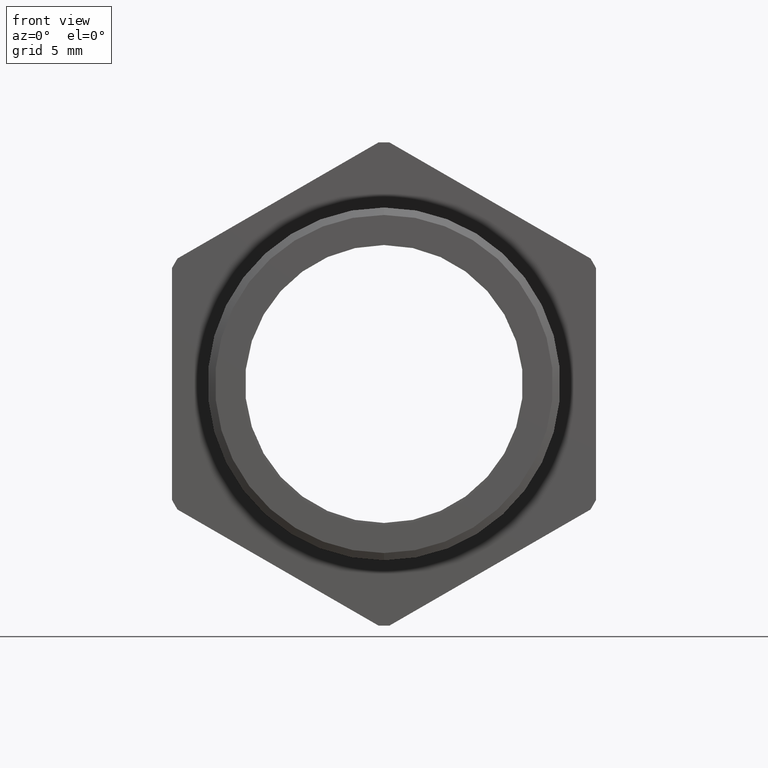
[diagram: clean part render]
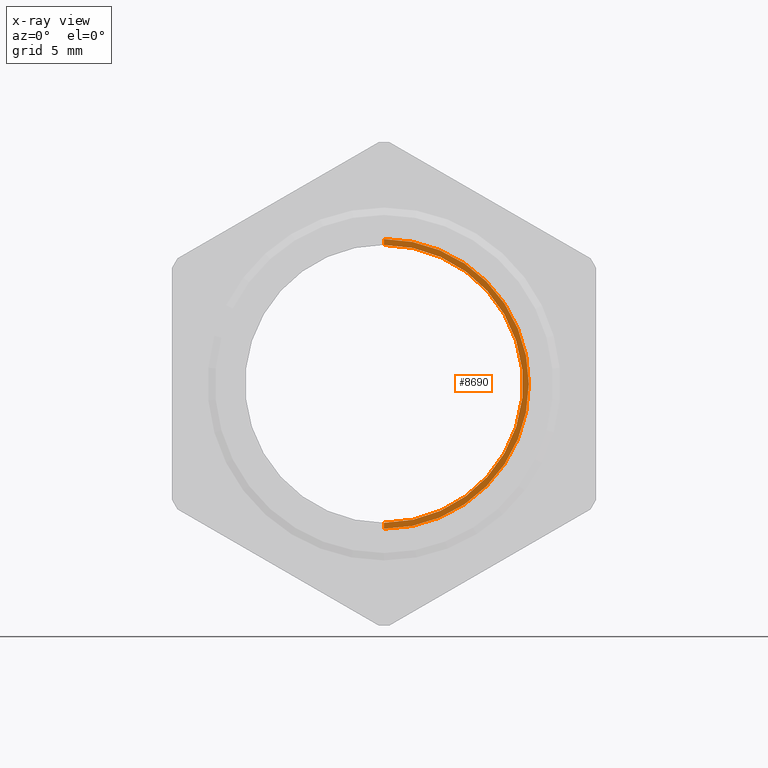
[diagram: x-ray — body ghosted, one internal face saturated and labeled with its STEP entity id]
A machine part, front view, then the same camera in x-ray: the body is ghosted and one INTERNAL B-rep face — a face not visible from any outside direction — is saturated and labeled: STEP entity #8690.
In plain terms, the highlighted conical surface has half-angle 88.312 deg.
Its self-contained STEP definition (entity closure, byte-faithful):
#1401 = VERTEX_POINT ( 'NONE', #4792 ) ;
#1408 = VERTEX_POINT ( 'NONE', #4776 ) ;
#1409 = VERTEX_POINT ( 'NONE', #4775 ) ;
#1411 = EDGE_CURVE ( 'NONE', #1409, #1401, #4774, .T. ) ;
#1414 = EDGE_CURVE ( 'NONE', #1408, #1428, #4769, .T. ) ;
#1428 = VERTEX_POINT ( 'NONE', #4890 ) ;
#4766 = DIRECTION ( 'NONE',  ( 0.0000000000000000000, -0.02945739864719126200, -0.9995660366703845700 ) ) ;
#4767 = VECTOR ( 'NONE', #4766, 39.37007874015747400 ) ;
#4768 = CARTESIAN_POINT ( 'NONE',  ( 0.0000000000000000000, 0.3747992980933291300, -0.2393976470508425700 ) ) ;
#4769 = LINE ( 'NONE', #4768, #4767 ) ;
#4771 = DIRECTION ( 'NONE',  ( 1.224115347344792500E-016, -0.02945739864719126200, 0.9995660366703845700 ) ) ;
#4772 = VECTOR ( 'NONE', #4771, 39.37007874015747400 ) ;
#4773 = CARTESIAN_POINT ( 'NONE',  ( 2.931775621842221100E-017, 0.3747992980933291300, 0.2393976470508425700 ) ) ;
#4774 = LINE ( 'NONE', #4773, #4772 ) ;
#4775 = CARTESIAN_POINT ( 'NONE',  ( 3.171688816986526800E-017, 0.3742219653570459900, 0.2589880461203001900 ) ) ;
#4776 = CARTESIAN_POINT ( 'NONE',  ( 0.0000000000000000000, 0.3742219653570459900, -0.2589880461203001900 ) ) ;
#4792 = CARTESIAN_POINT ( 'NONE',  ( 3.305482958008340700E-017, 0.3738999999999996800, 0.2699131668257122600 ) ) ;
#4890 = CARTESIAN_POINT ( 'NONE',  ( 0.0000000000000000000, 0.3738999999999996800, -0.2699131668257122600 ) ) ;
#7211 = DIRECTION ( 'NONE',  ( 0.0000000000000000000, 0.0000000000000000000, -1.000000000000000000 ) ) ;
#7212 = DIRECTION ( 'NONE',  ( 0.0000000000000000000, -1.000000000000000000, 0.0000000000000000000 ) ) ;
#7213 = CARTESIAN_POINT ( 'NONE',  ( 0.0000000000000000000, 0.3747992980933291300, 0.0000000000000000000 ) ) ;
#7214 = AXIS2_PLACEMENT_3D ( 'NONE', #7213, #7212, #7211 ) ;
#7215 = CONICAL_SURFACE ( 'NONE', #7214, 0.2393976470508425700, 1.541334666264296200 ) ;
#7216 = FACE_OUTER_BOUND ( 'NONE', #8701, .T. ) ;
#7222 = DIRECTION ( 'NONE',  ( 0.0000000000000000000, 0.0000000000000000000, 1.000000000000000000 ) ) ;
#7223 = DIRECTION ( 'NONE',  ( -0.0000000000000000000, 1.000000000000000000, -0.0000000000000000000 ) ) ;
#7224 = CARTESIAN_POINT ( 'NONE',  ( 0.0000000000000000000, 0.3738999999999996800, 0.0000000000000000000 ) ) ;
#7225 = AXIS2_PLACEMENT_3D ( 'NONE', #7224, #7223, #7222 ) ;
#7226 = CIRCLE ( 'NONE', #7225, 0.2699131668257122000 ) ;
#8053 = DIRECTION ( 'NONE',  ( 0.0000000000000000000, 0.0000000000000000000, -1.000000000000000000 ) ) ;
#8054 = DIRECTION ( 'NONE',  ( -0.0000000000000000000, 1.000000000000000000, -0.0000000000000000000 ) ) ;
#8055 = CARTESIAN_POINT ( 'NONE',  ( 0.0000000000000000000, 0.3742219653570459900, 0.0000000000000000000 ) ) ;
#8056 = AXIS2_PLACEMENT_3D ( 'NONE', #8055, #8054, #8053 ) ;
#8061 = CIRCLE ( 'NONE', #8056, 0.2589880461203001900 ) ;
#8688 = ORIENTED_EDGE ( 'NONE', *, *, #1414, .T. ) ;
#8690 = ADVANCED_FACE ( 'NONE', ( #7216 ), #7215, .F. ) ;
#8694 = ORIENTED_EDGE ( 'NONE', *, *, #9212, .T. ) ;
#8698 = ORIENTED_EDGE ( 'NONE', *, *, #1411, .F. ) ;
#8701 = EDGE_LOOP ( 'NONE', ( #8698, #8694, #8688, #8724 ) ) ;
#8722 = EDGE_CURVE ( 'NONE', #1401, #1428, #7226, .T. ) ;
#8724 = ORIENTED_EDGE ( 'NONE', *, *, #8722, .F. ) ;
#9212 = EDGE_CURVE ( 'NONE', #1409, #1408, #8061, .T. ) ;